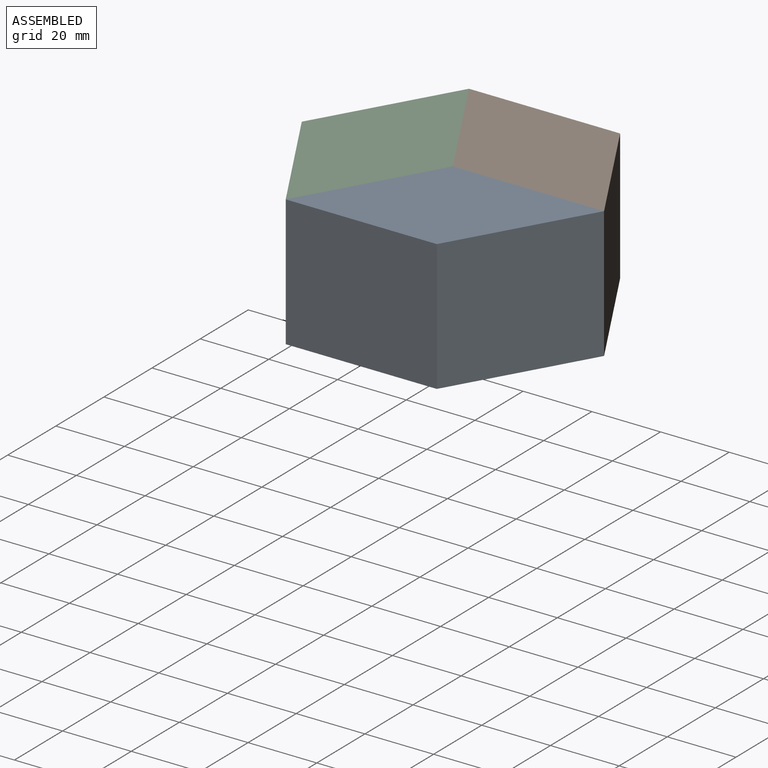
[diagram: assembled view]
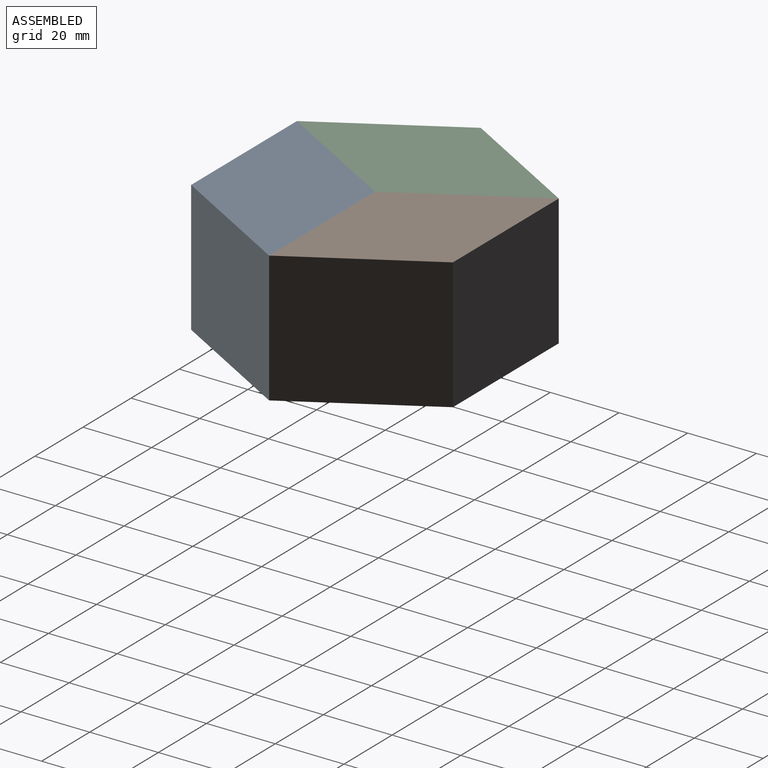
[diagram: assembled view, second angle]
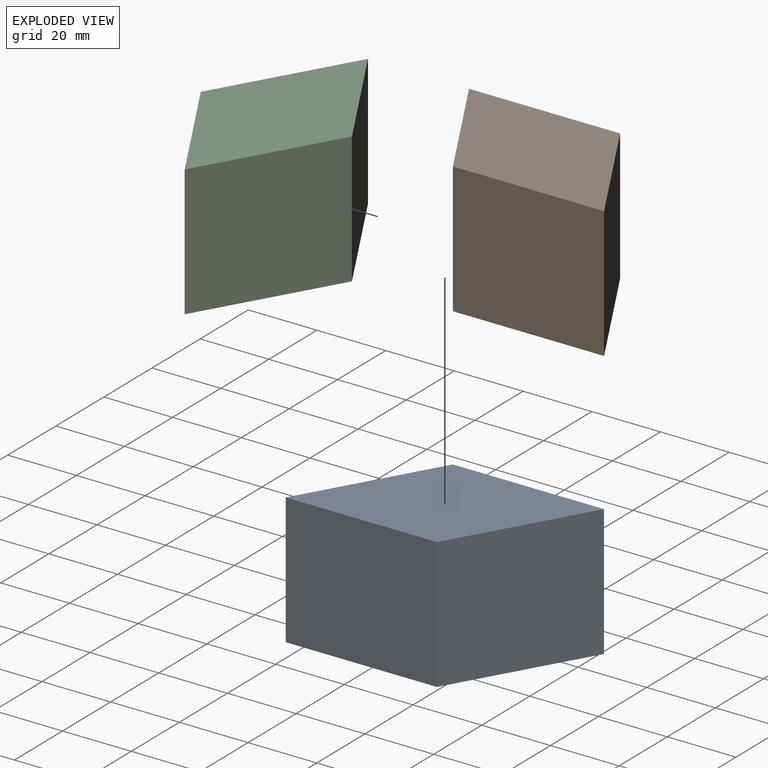
[diagram: exploded view]
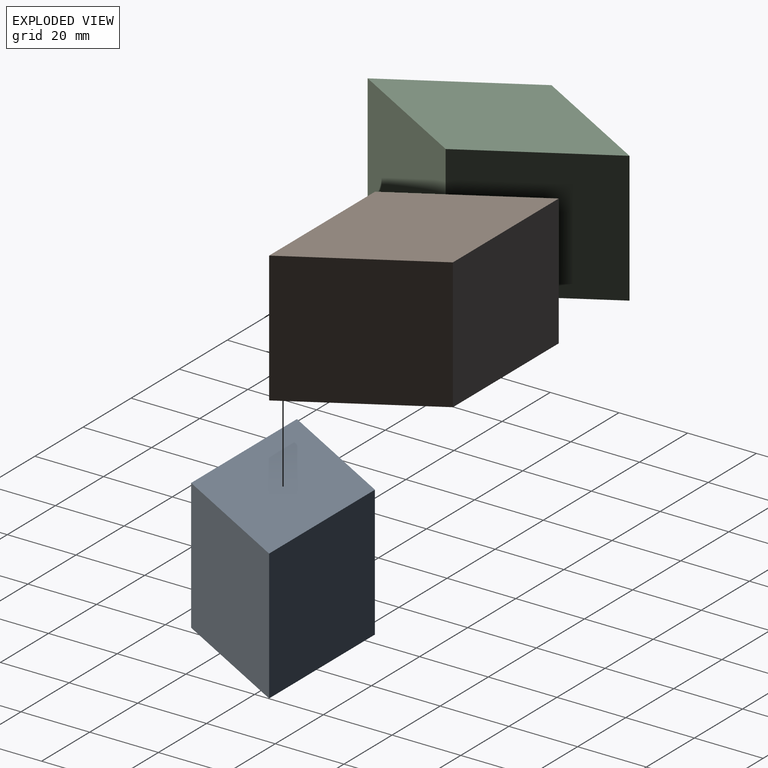
[diagram: exploded view, second angle]
ASSEMBLY  parts=3 mates=5
PART A: 6 faces, bbox 66x38.1x38.1 mm
  f0: plane 43.99x38.1mm, normal (0,1,0), area 1676.2mm2, adj f1,f3,f4,f5
  f1: plane 38.1x38.1mm, normal (-0.87,-0.5,0), area 1676.2mm2, adj f0,f2,f4,f5
  f2: plane 43.99x38.1mm, normal (0,-1,0), area 1676.2mm2, adj f1,f3,f4,f5
  f3: plane 38.1x38.1mm, normal (0.87,0.5,0), area 1676.2mm2, adj f0,f2,f4,f5
  f4: plane 65.99x38.1mm, normal (0,0,1), area 1676.2mm2, adj f0,f1,f2,f3
  f5: plane 65.99x38.1mm, normal (0,0,-1), area 1676.2mm2, adj f0,f1,f2,f3
PART B: same geometry as A
PART C: same geometry as A
PLACE A rot(axis=(0,0,-1),120deg) t=(43.12,46.41,-26.52)mm
PLACE B t=(-22.87,84.51,-26.52)mm
PLACE C rot(axis=(0,0,-1),60deg) t=(-22.87,84.51,-26.52)mm
MATE planar A.f4 <-> B.f4  axis (0,0,1) through (10.12,27.36,11.58)mm
MATE planar C.f0 <-> B.f1  axis (0.87,0.5,0) through (-11.87,65.46,-7.47)mm
MATE planar C.f4 <-> B.f4  axis (0,0,1) through (-22.87,46.41,11.58)mm
MATE planar A.f2 <-> C.f3  axis (-0.87,0.5,0) through (-11.87,27.36,-7.47)mm
MATE planar A.f1 <-> B.f2  axis (0,1,0) through (43.12,46.41,-7.47)mm
